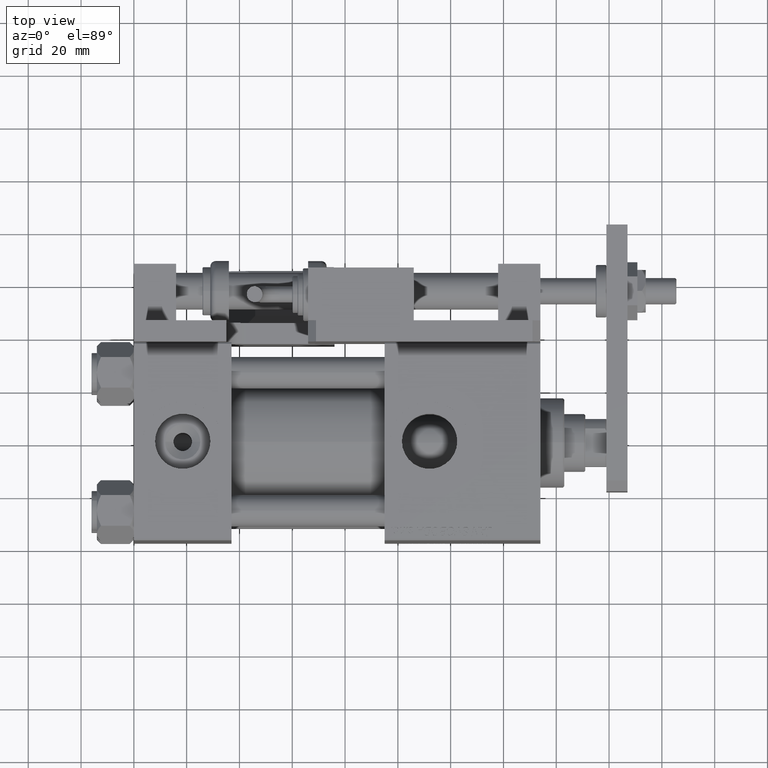
[diagram: clean part render]
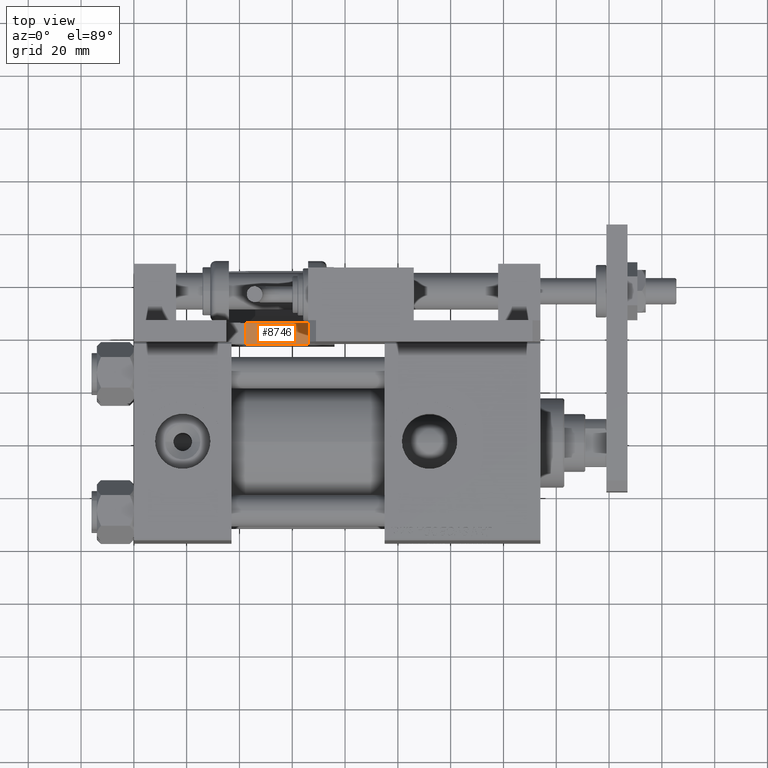
[diagram: same view with one face highlighted and labeled with its STEP entity id]
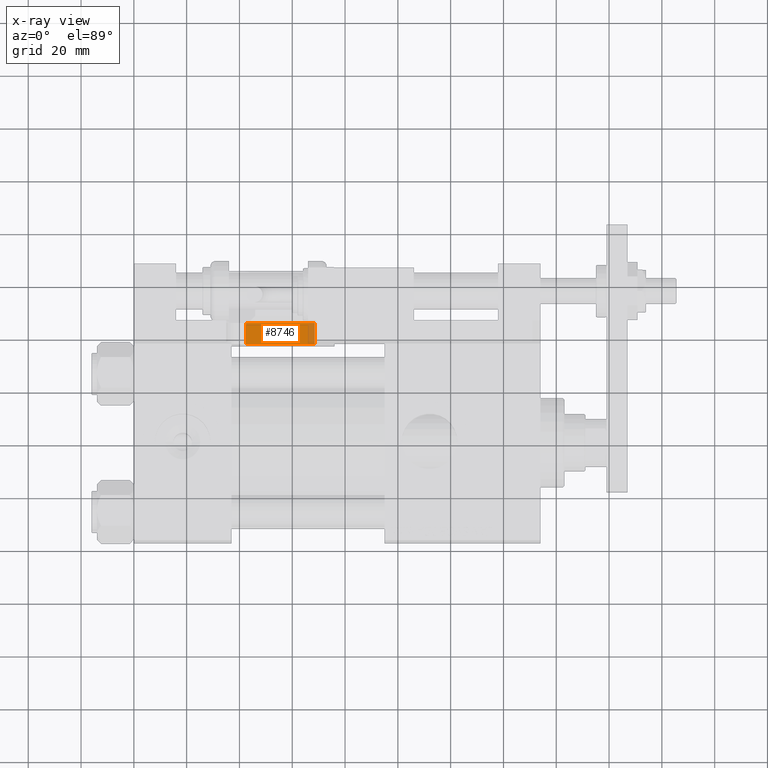
[diagram: x-ray of the same camera — body ghosted, the highlighted face saturated]
A machine part, top view. The second image highlights one B-rep face of the part: STEP entity #8746.
The next image is the same camera in x-ray: the body ghosted, the highlighted face saturated — about 9% of this face is hidden behind the body in this view.
In plain terms, the highlighted planar face has unit normal (-0, 0, -1).
Its self-contained STEP definition (entity closure, byte-faithful):
#1285 = ORIENTED_EDGE ( 'NONE', *, *, #45440, .T. ) ;
#1495 = DIRECTION ( 'NONE',  ( 1.000000000000000000, 1.692413147294442765E-16, 0.000000000000000000 ) ) ;
#2714 = CARTESIAN_POINT ( 'NONE',  ( -68.50000000000005684, 57.00000000000008527, 8.000000000000000000 ) ) ;
#3761 = VERTEX_POINT ( 'NONE', #54933 ) ;
#6465 = VECTOR ( 'NONE', #34268, 1000.000000000000000 ) ;
#7506 = LINE ( 'NONE', #2714, #23846 ) ;
#7859 = AXIS2_PLACEMENT_3D ( 'NONE', #35695, #19007, #1495 ) ;
#8746 = ADVANCED_FACE ( 'NONE', ( #27781 ), #40218, .F. ) ;
#10065 = EDGE_CURVE ( 'NONE', #23881, #17064, #11291, .T. ) ;
#11291 = LINE ( 'NONE', #28559, #48494 ) ;
#17064 = VERTEX_POINT ( 'NONE', #24662 ) ;
#17897 = LINE ( 'NONE', #35140, #47492 ) ;
#19007 = DIRECTION ( 'NONE',  ( 1.692413147294442765E-16, -1.000000000000000000, 0.000000000000000000 ) ) ;
#21790 = CARTESIAN_POINT ( 'NONE',  ( -42.49999999999997868, 57.00000000000009237, 0.000000000000000000 ) ) ;
#22407 = ORIENTED_EDGE ( 'NONE', *, *, #49209, .T. ) ;
#23846 = VECTOR ( 'NONE', #42291, 1000.000000000000000 ) ;
#23881 = VERTEX_POINT ( 'NONE', #27234 ) ;
#24662 = CARTESIAN_POINT ( 'NONE',  ( -68.50000000000005684, 57.00000000000008527, 8.000000000000000000 ) ) ;
#25274 = EDGE_CURVE ( 'NONE', #42947, #3761, #42475, .T. ) ;
#25830 = DIRECTION ( 'NONE',  ( 0.000000000000000000, 0.000000000000000000, -1.000000000000000000 ) ) ;
#27234 = CARTESIAN_POINT ( 'NONE',  ( -42.49999999999997868, 57.00000000000009237, 8.000000000000000000 ) ) ;
#27781 = FACE_OUTER_BOUND ( 'NONE', #51607, .T. ) ;
#28559 = CARTESIAN_POINT ( 'NONE',  ( -34.99999999999997868, 57.00000000000009237, 8.000000000000000000 ) ) ;
#34268 = DIRECTION ( 'NONE',  ( -1.000000000000000000, -1.692413147294442765E-16, 0.000000000000000000 ) ) ;
#35104 = CARTESIAN_POINT ( 'NONE',  ( -34.99999999999997868, 57.00000000000009237, 0.000000000000000000 ) ) ;
#35140 = CARTESIAN_POINT ( 'NONE',  ( -42.49999999999997868, 57.00000000000009237, 0.000000000000000000 ) ) ;
#35695 = CARTESIAN_POINT ( 'NONE',  ( -34.99999999999997868, 57.00000000000009237, 8.000000000000000000 ) ) ;
#40218 = PLANE ( 'NONE',  #7859 ) ;
#42291 = DIRECTION ( 'NONE',  ( -0.000000000000000000, -0.000000000000000000, 1.000000000000000000 ) ) ;
#42475 = LINE ( 'NONE', #35104, #6465 ) ;
#42947 = VERTEX_POINT ( 'NONE', #21790 ) ;
#45440 = EDGE_CURVE ( 'NONE', #3761, #17064, #7506, .T. ) ;
#45794 = DIRECTION ( 'NONE',  ( -1.000000000000000000, -1.692413147294442765E-16, 0.000000000000000000 ) ) ;
#47492 = VECTOR ( 'NONE', #25830, 1000.000000000000000 ) ;
#48494 = VECTOR ( 'NONE', #45794, 1000.000000000000000 ) ;
#48658 = ORIENTED_EDGE ( 'NONE', *, *, #25274, .T. ) ;
#49209 = EDGE_CURVE ( 'NONE', #23881, #42947, #17897, .T. ) ;
#51607 = EDGE_LOOP ( 'NONE', ( #48658, #1285, #53571, #22407 ) ) ;
#53571 = ORIENTED_EDGE ( 'NONE', *, *, #10065, .F. ) ;
#54933 = CARTESIAN_POINT ( 'NONE',  ( -68.50000000000005684, 57.00000000000008527, 0.000000000000000000 ) ) ;